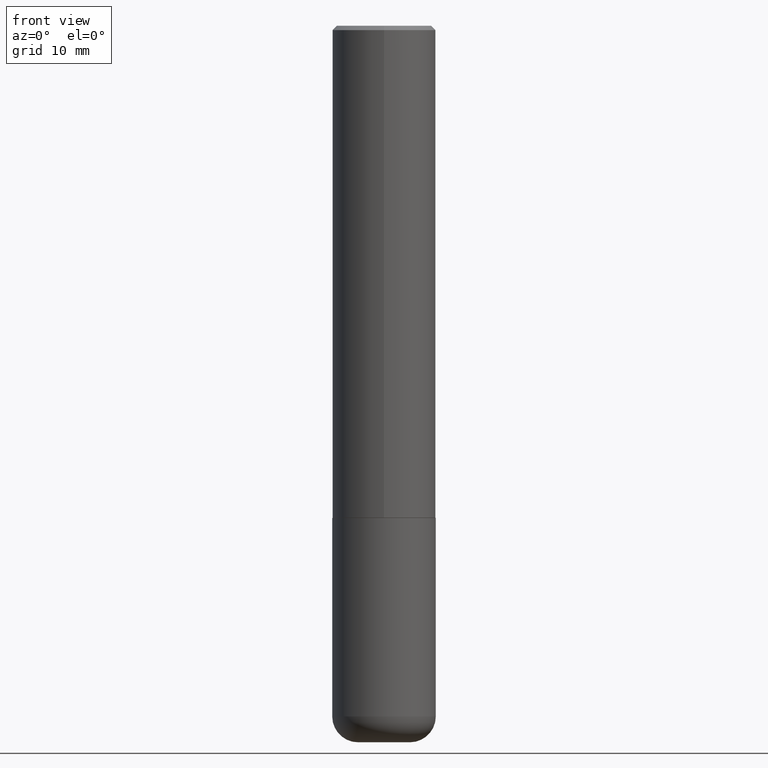
[diagram: clean part render]
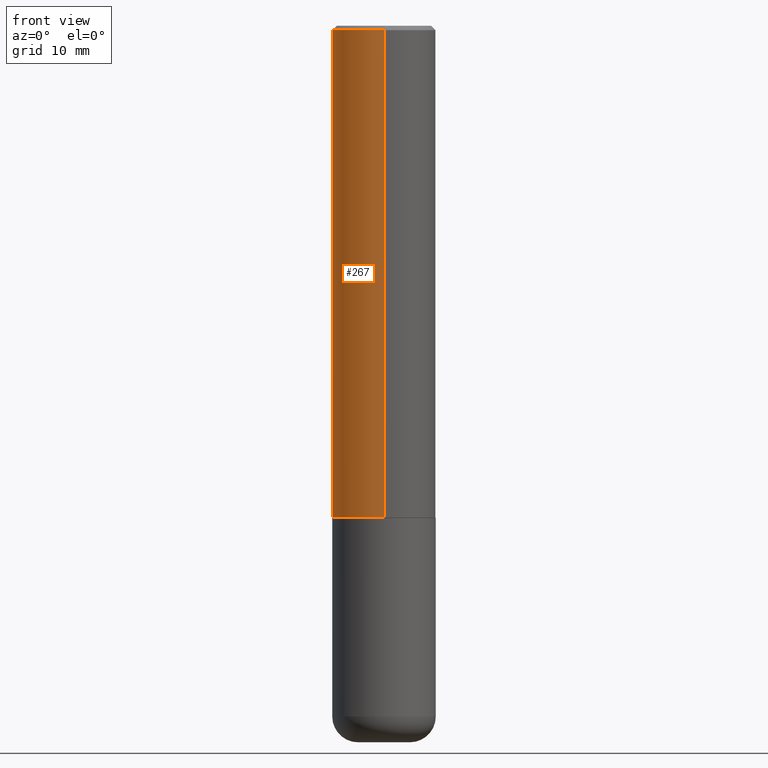
[diagram: same view with one face highlighted and labeled with its STEP entity id]
A machine part, front view. The second image highlights one B-rep face of the part: STEP entity #267.
In plain terms, the highlighted cylindrical surface (partial cylindrical patch) has radius 5.9995 mm, axis along (-0, 0, 1).
Its self-contained STEP definition (entity closure, byte-faithful):
#4 = CARTESIAN_POINT ( 'NONE',  ( -1.620449627073635276E-15, -0.2362000000000001043, -0.01999999999999922673 ) ) ;
#5 = CIRCLE ( 'NONE', #338, 0.2362000000000000210 ) ;
#15 = LINE ( 'NONE', #192, #271 ) ;
#22 = EDGE_CURVE ( 'NONE', #83, #391, #15, .T. ) ;
#39 = FACE_OUTER_BOUND ( 'NONE', #52, .T. ) ;
#52 = EDGE_LOOP ( 'NONE', ( #121, #176, #91, #393 ) ) ;
#72 = CARTESIAN_POINT ( 'NONE',  ( 0.000000000000000000, 0.000000000000000000, 0.000000000000000000 ) ) ;
#78 = AXIS2_PLACEMENT_3D ( 'NONE', #72, #299, #261 ) ;
#83 = VERTEX_POINT ( 'NONE', #162 ) ;
#91 = ORIENTED_EDGE ( 'NONE', *, *, #241, .T. ) ;
#112 = CARTESIAN_POINT ( 'NONE',  ( -1.649375784469497117E-15, -0.2362000000000001598, 8.244105309282006832E-16 ) ) ;
#116 = VECTOR ( 'NONE', #202, 39.37007874015748143 ) ;
#121 = ORIENTED_EDGE ( 'NONE', *, *, #22, .F. ) ;
#126 = DIRECTION ( 'NONE',  ( -2.446288790796431609E-29, 3.490307074209145884E-15, 1.000000000000000000 ) ) ;
#138 = LINE ( 'NONE', #112, #116 ) ;
#151 = EDGE_CURVE ( 'NONE', #391, #345, #5, .T. ) ;
#162 = CARTESIAN_POINT ( 'NONE',  ( 1.678301941865385779E-15, 0.2361999999999924715, -2.243100000000000982 ) ) ;
#169 = DIRECTION ( 'NONE',  ( -2.446288790796431609E-29, 3.490307074209145490E-15, 1.000000000000000000 ) ) ;
#176 = ORIENTED_EDGE ( 'NONE', *, *, #405, .T. ) ;
#177 = DIRECTION ( 'NONE',  ( -2.446288790796431609E-29, 3.490307074209145490E-15, 1.000000000000000000 ) ) ;
#192 = CARTESIAN_POINT ( 'NONE',  ( 1.678301941865357577E-15, 0.2362000000000001598, -8.244105309282006832E-16 ) ) ;
#200 = CARTESIAN_POINT ( 'NONE',  ( 4.892577581592875165E-31, -6.980614148418308383E-17, -0.02000000000000005246 ) ) ;
#202 = DIRECTION ( 'NONE',  ( -2.446288790796431609E-29, 3.490307074209145884E-15, 1.000000000000000000 ) ) ;
#234 = DIRECTION ( 'NONE',  ( -6.982962677686265922E-15, -1.000000000000000000, 3.487819265831411350E-15 ) ) ;
#236 = CIRCLE ( 'NONE', #333, 0.2362000000000002986 ) ;
#240 = CARTESIAN_POINT ( 'NONE',  ( 5.487270386635476339E-29, -7.829107798158534704E-15, -2.243100000000000094 ) ) ;
#241 = EDGE_CURVE ( 'NONE', #401, #345, #138, .T. ) ;
#261 = DIRECTION ( 'NONE',  ( -6.982962677686265922E-15, -1.000000000000000000, 3.490307074209145490E-15 ) ) ;
#267 = ADVANCED_FACE ( 'NONE', ( #39 ), #334, .T. ) ;
#271 = VECTOR ( 'NONE', #126, 39.37007874015748143 ) ;
#275 = CARTESIAN_POINT ( 'NONE',  ( 1.649375784469496722E-15, 0.2361999999999999655, -0.02000000000000087472 ) ) ;
#299 = DIRECTION ( 'NONE',  ( -2.446288790796431609E-29, 3.490307074209145490E-15, 1.000000000000000000 ) ) ;
#333 = AXIS2_PLACEMENT_3D ( 'NONE', #240, #177, #399 ) ;
#334 = CYLINDRICAL_SURFACE ( 'NONE', #78, 0.2362000000000001598 ) ;
#338 = AXIS2_PLACEMENT_3D ( 'NONE', #200, #169, #234 ) ;
#345 = VERTEX_POINT ( 'NONE', #4 ) ;
#391 = VERTEX_POINT ( 'NONE', #275 ) ;
#393 = ORIENTED_EDGE ( 'NONE', *, *, #151, .F. ) ;
#394 = CARTESIAN_POINT ( 'NONE',  ( -1.649375784469443277E-15, -0.2362000000000081257, -2.243099999999999206 ) ) ;
#399 = DIRECTION ( 'NONE',  ( -6.982962677686265922E-15, -1.000000000000000000, 3.469747663417772663E-15 ) ) ;
#401 = VERTEX_POINT ( 'NONE', #394 ) ;
#405 = EDGE_CURVE ( 'NONE', #83, #401, #236, .T. ) ;